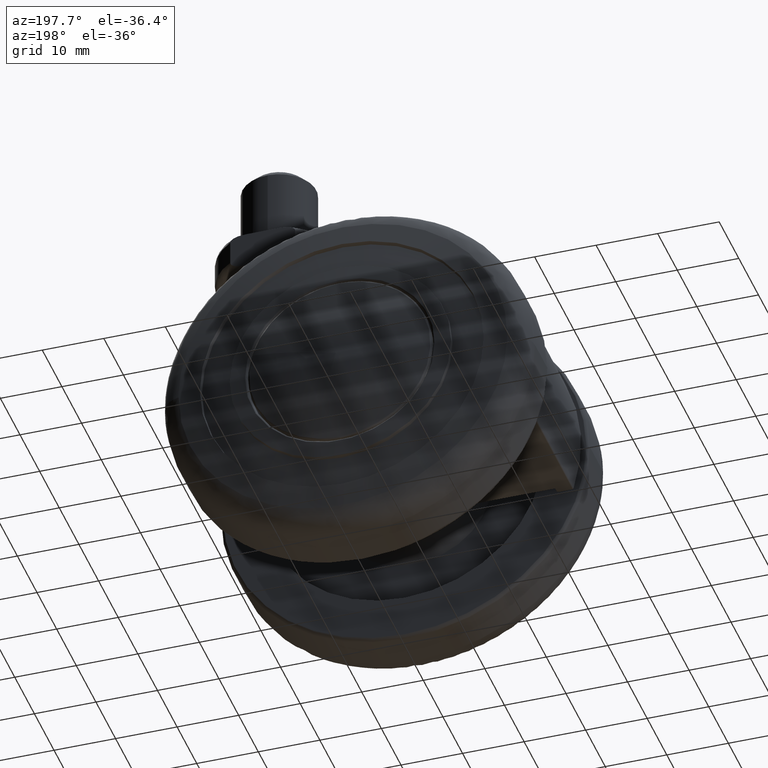
[diagram: clean part render]
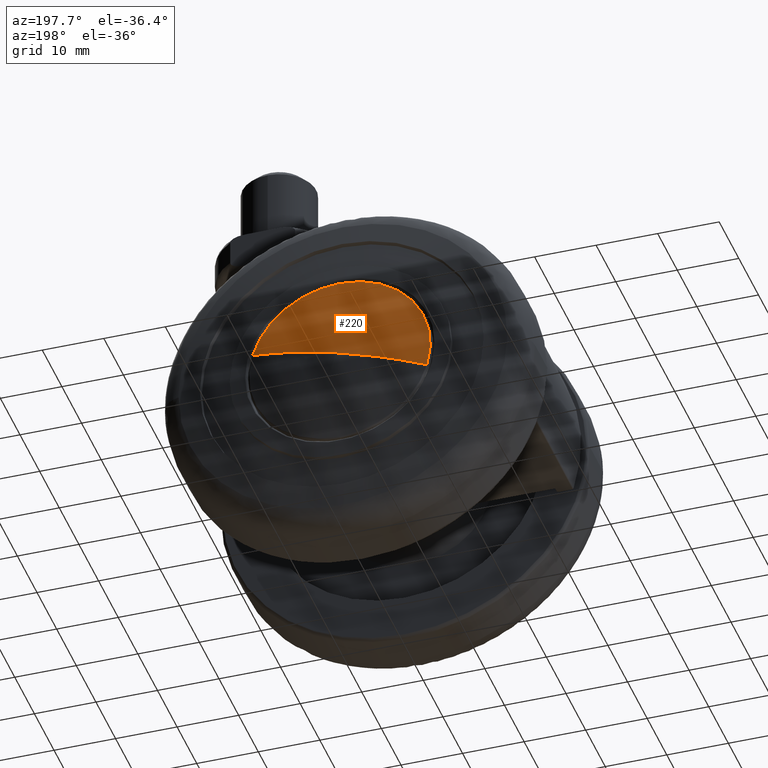
[diagram: same view with one face highlighted and labeled with its STEP entity id]
A machine part, auxiliary view. The second image highlights one B-rep face of the part: STEP entity #220.
In plain terms, the highlighted spherical surface has radius 55 mm.
Its self-contained STEP definition (entity closure, byte-faithful):
#220=ADVANCED_FACE('',(#934),#933,.T.);
#933=SPHERICAL_SURFACE('',#3025,5.50000000000E+01);
#934=FACE_OUTER_BOUND('',#3026,.T.);
#3022=CARTESIAN_POINT('',(0.00000000000E+00,-3.04300000000E+01,0.00000000000E+00));
#3023=DIRECTION('',(-0.00000000000E+00,-1.00000000000E+00,-0.00000000000E+00));
#3024=DIRECTION('',(9.61426274566E-01,0.00000000000E+00,2.75062753885E-01));
#3025=AXIS2_PLACEMENT_3D('',#3022,#3023,#3024);
#3026=EDGE_LOOP('',(#4819,#4820,#4821,#4822));
#4819=ORIENTED_EDGE('',*,*,#5386,.T.);
#4820=ORIENTED_EDGE('',*,*,#5381,.F.);
#4821=ORIENTED_EDGE('',*,*,#5385,.F.);
#4822=ORIENTED_EDGE('',*,*,#5387,.F.);
#5381=EDGE_CURVE('',#6642,#6649,#6650,.T.);
#5385=EDGE_CURVE('',#6669,#6642,#6676,.T.);
#5386=EDGE_CURVE('',#6682,#6649,#6683,.T.);
#5387=EDGE_CURVE('',#6682,#6669,#6689,.T.);
#6642=VERTEX_POINT('',#8967);
#6649=VERTEX_POINT('',#8971);
#6650=CIRCLE('',#8975,1.47303473492E+01);
#6669=VERTEX_POINT('',#8984);
#6676=CIRCLE('',#8992,1.47303473492E+01);
#6682=VERTEX_POINT('',#8993);
#6683=(BOUNDED_CURVE() B_SPLINE_CURVE(2,(#8994,#8995,#8996),.UNSPECIFIED.,.F.,.F.) B_SPLINE_CURVE_WITH_KNOTS((3,3),(0.00000000000E+00,1.00000000000E+00),.UNSPECIFIED.) CURVE() GEOMETRIC_REPRESENTATION_ITEM() RATIONAL_B_SPLINE_CURVE((1.00000000000E+00,9.90824837049E-01,1.00000000000E+00)) REPRESENTATION_ITEM('') );
#6689=(BOUNDED_CURVE() B_SPLINE_CURVE(2,(#8997,#8998,#8999),.UNSPECIFIED.,.F.,.F.) B_SPLINE_CURVE_WITH_KNOTS((3,3),(0.00000000000E+00,1.00000000000E+00),.UNSPECIFIED.) CURVE() GEOMETRIC_REPRESENTATION_ITEM() RATIONAL_B_SPLINE_CURVE((7.50000000000E-01,7.43118627787E-01,7.50000000000E-01)) REPRESENTATION_ITEM('') );
#8967=CARTESIAN_POINT('',(1.77635683940E-15,2.25607243484E+01,1.47303473492E+01));
#8971=CARTESIAN_POINT('',(-1.41621429657E+01,2.25607243484E+01,-4.05176993993E+00));
#8972=CARTESIAN_POINT('',(0.00000000000E+00,2.25607243484E+01,0.00000000000E+00));
#8973=DIRECTION('',(0.00000000000E+00,-1.00000000000E+00,-0.00000000000E+00));
#8974=DIRECTION('',(-1.22460635382E-16,0.00000000000E+00,-1.00000000000E+00));
#8975=AXIS2_PLACEMENT_3D('',#8972,#8973,#8974);
#8984=CARTESIAN_POINT('',(1.41617941255E+01,2.25607243484E+01,4.05298904208E+00));
#8989=CARTESIAN_POINT('',(0.00000000000E+00,2.25607243484E+01,0.00000000000E+00));
#8990=DIRECTION('',(0.00000000000E+00,-1.00000000000E+00,-0.00000000000E+00));
#8991=DIRECTION('',(-1.22460635382E-16,0.00000000000E+00,-1.00000000000E+00));
#8992=AXIS2_PLACEMENT_3D('',#8989,#8990,#8991);
#8993=CARTESIAN_POINT('',(-3.23776399255E-15,2.45700000000E+01,-9.26319889296E-16));
#8994=CARTESIAN_POINT('',(-3.23776399255E-15,2.45700000000E+01,-9.26319889296E-16));
#8995=CARTESIAN_POINT('',(-7.21282191895E+00,2.45700000000E+01,-2.06357857362E+00));
#8996=CARTESIAN_POINT('',(-1.41621429750E+01,2.25607243484E+01,-4.05176990755E+00));
#8997=CARTESIAN_POINT('',(3.23776399255E-15,2.45700000000E+01,9.26319889296E-16));
#8998=CARTESIAN_POINT('',(7.21282191895E+00,2.45700000000E+01,2.06357857362E+00));
#8999=CARTESIAN_POINT('',(1.41621429750E+01,2.25607243484E+01,4.05176990755E+00));